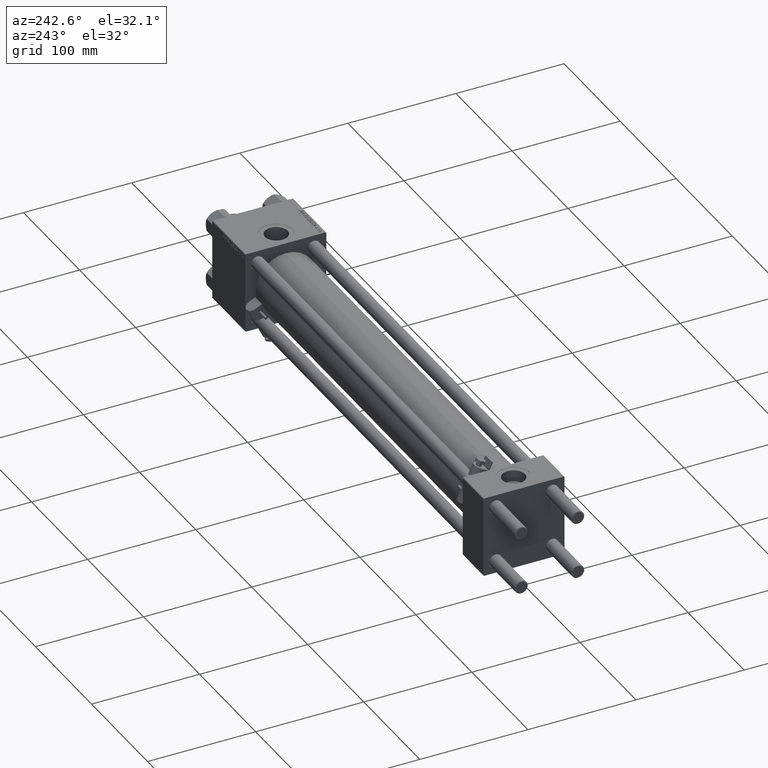
[diagram: clean part render]
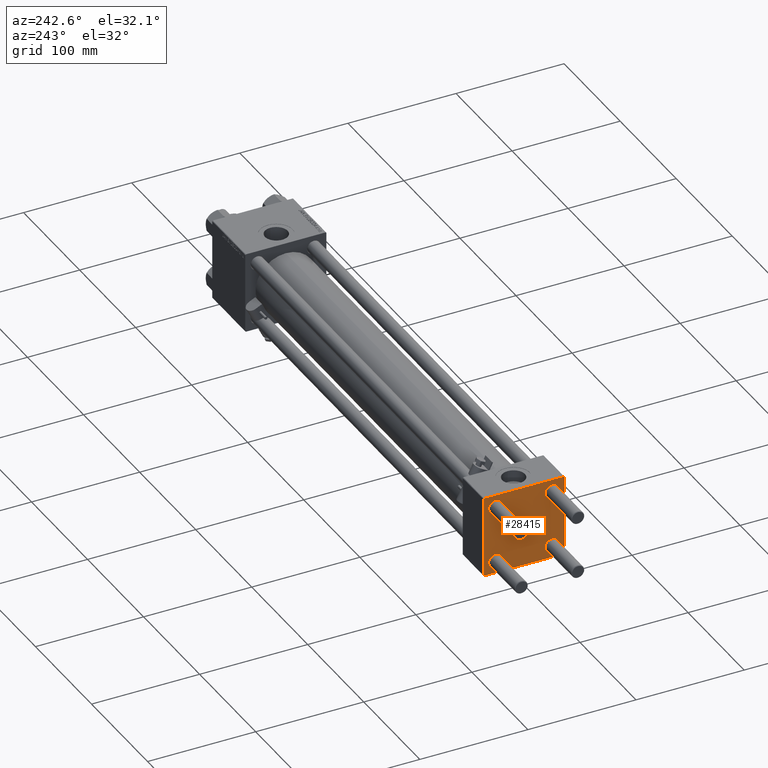
[diagram: same view with one face highlighted and labeled with its STEP entity id]
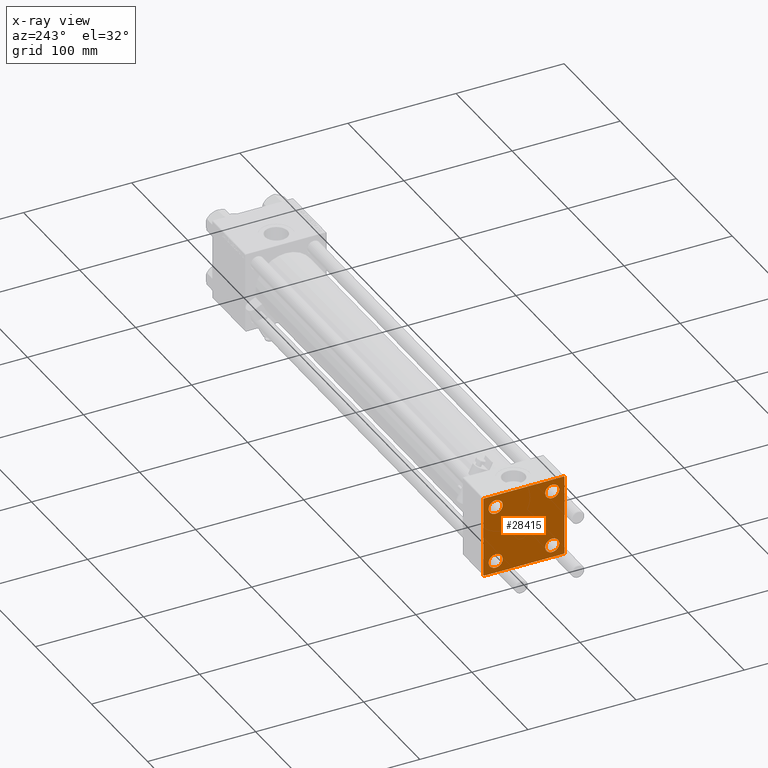
[diagram: x-ray of the same camera — body ghosted, the highlighted face saturated]
A machine part, auxiliary view. The second image highlights one B-rep face of the part: STEP entity #28415.
The next image is the same camera in x-ray: the body ghosted, the highlighted face saturated — about 0% of this face is hidden behind the body in this view.
In plain terms, the highlighted planar face has unit normal (-1, 0, 0).
Its self-contained STEP definition (entity closure, byte-faithful):
#137 = LINE ( 'NONE', #3837, #38726 ) ;
#274 = ORIENTED_EDGE ( 'NONE', *, *, #49593, .T. ) ;
#392 = DIRECTION ( 'NONE',  ( 0.000000000000000000, 9.251858538542971581E-17, -1.000000000000000000 ) ) ;
#677 = ORIENTED_EDGE ( 'NONE', *, *, #46700, .T. ) ;
#836 = ORIENTED_EDGE ( 'NONE', *, *, #30926, .T. ) ;
#933 = VERTEX_POINT ( 'NONE', #28862 ) ;
#1445 = VERTEX_POINT ( 'NONE', #44728 ) ;
#3435 = LINE ( 'NONE', #31499, #7609 ) ;
#3837 = CARTESIAN_POINT ( 'NONE',  ( 0.000000000000000000, -37.50000000000000711, 37.49999999999999289 ) ) ;
#4575 = VERTEX_POINT ( 'NONE', #49003 ) ;
#4714 = ORIENTED_EDGE ( 'NONE', *, *, #25973, .F. ) ;
#5181 = DIRECTION ( 'NONE',  ( 1.000000000000000000, -0.000000000000000000, 0.000000000000000000 ) ) ;
#5385 = VECTOR ( 'NONE', #34020, 1000.000000000000114 ) ;
#5472 = DIRECTION ( 'NONE',  ( 0.000000000000000000, 0.000000000000000000, 1.000000000000000000 ) ) ;
#5549 = CARTESIAN_POINT ( 'NONE',  ( 0.000000000000000000, 26.14999999999999858, 26.15000000000000213 ) ) ;
#6044 = AXIS2_PLACEMENT_3D ( 'NONE', #13925, #5181, #45160 ) ;
#6916 = VERTEX_POINT ( 'NONE', #23203 ) ;
#7567 = VERTEX_POINT ( 'NONE', #11062 ) ;
#7609 = VECTOR ( 'NONE', #47666, 1000.000000000000000 ) ;
#7723 = VERTEX_POINT ( 'NONE', #39364 ) ;
#8909 = EDGE_CURVE ( 'NONE', #7723, #48031, #23593, .T. ) ;
#9100 = AXIS2_PLACEMENT_3D ( 'NONE', #51370, #24309, #40211 ) ;
#9737 = EDGE_LOOP ( 'NONE', ( #37878, #17606 ) ) ;
#9763 = VERTEX_POINT ( 'NONE', #39744 ) ;
#10894 = VERTEX_POINT ( 'NONE', #21459 ) ;
#11062 = CARTESIAN_POINT ( 'NONE',  ( 0.000000000000000000, 37.49999999999999289, 37.00000000000000000 ) ) ;
#11670 = CARTESIAN_POINT ( 'NONE',  ( 0.000000000000000000, -26.14999999999999147, 32.65000000000003411 ) ) ;
#11687 = VECTOR ( 'NONE', #33465, 1000.000000000000000 ) ;
#11698 = CARTESIAN_POINT ( 'NONE',  ( -0.000000000000000000, -37.25000000000000000, 37.25000000000000000 ) ) ;
#12338 = ORIENTED_EDGE ( 'NONE', *, *, #37587, .T. ) ;
#12403 = VERTEX_POINT ( 'NONE', #36164 ) ;
#12811 = CARTESIAN_POINT ( 'NONE',  ( 0.000000000000000000, 26.14999999999999858, -26.15000000000000213 ) ) ;
#13817 = EDGE_CURVE ( 'NONE', #12403, #21548, #3435, .T. ) ;
#13865 = AXIS2_PLACEMENT_3D ( 'NONE', #47605, #43614, #23218 ) ;
#13925 = CARTESIAN_POINT ( 'NONE',  ( 0.000000000000000000, -26.14999999999999147, 26.15000000000000924 ) ) ;
#14039 = DIRECTION ( 'NONE',  ( 1.000000000000000000, -0.000000000000000000, 0.000000000000000000 ) ) ;
#14151 = CIRCLE ( 'NONE', #50516, 6.500000000000015987 ) ;
#14353 = LINE ( 'NONE', #22020, #33031 ) ;
#14956 = CARTESIAN_POINT ( 'NONE',  ( 0.000000000000000000, -26.14999999999999147, -32.65000000000002700 ) ) ;
#14969 = ORIENTED_EDGE ( 'NONE', *, *, #33819, .F. ) ;
#15232 = VECTOR ( 'NONE', #36744, 1000.000000000000000 ) ;
#15276 = EDGE_CURVE ( 'NONE', #42941, #7567, #14353, .T. ) ;
#15391 = VERTEX_POINT ( 'NONE', #11670 ) ;
#16077 = CARTESIAN_POINT ( 'NONE',  ( 0.000000000000000000, -37.00000000000002132, -37.50000000000000711 ) ) ;
#16781 = VECTOR ( 'NONE', #42779, 1000.000000000000000 ) ;
#17606 = ORIENTED_EDGE ( 'NONE', *, *, #45076, .T. ) ;
#18117 = LINE ( 'NONE', #26042, #11687 ) ;
#18414 = CIRCLE ( 'NONE', #42067, 6.500000000000015987 ) ;
#18547 = VECTOR ( 'NONE', #36039, 1000.000000000000114 ) ;
#19311 = FACE_BOUND ( 'NONE', #29906, .T. ) ;
#19994 = VERTEX_POINT ( 'NONE', #14956 ) ;
#20417 = CARTESIAN_POINT ( 'NONE',  ( 0.000000000000000000, -26.14999999999999147, -26.15000000000000924 ) ) ;
#20896 = ORIENTED_EDGE ( 'NONE', *, *, #26024, .T. ) ;
#21314 = ORIENTED_EDGE ( 'NONE', *, *, #15276, .T. ) ;
#21414 = CIRCLE ( 'NONE', #29030, 6.500000000000023093 ) ;
#21459 = CARTESIAN_POINT ( 'NONE',  ( 0.000000000000000000, 26.14999999999999858, 32.65000000000002700 ) ) ;
#21548 = VERTEX_POINT ( 'NONE', #16077 ) ;
#22020 = CARTESIAN_POINT ( 'NONE',  ( 0.000000000000000000, 37.24999999999999289, 37.24999999999999289 ) ) ;
#22906 = CARTESIAN_POINT ( 'NONE',  ( 0.000000000000000000, 37.49999999999999289, 37.50000000000000000 ) ) ;
#23203 = CARTESIAN_POINT ( 'NONE',  ( 0.000000000000000000, 37.49999999999999289, -36.99999999999998579 ) ) ;
#23218 = DIRECTION ( 'NONE',  ( 0.000000000000000000, 0.000000000000000000, 1.000000000000000000 ) ) ;
#23332 = DIRECTION ( 'NONE',  ( 0.000000000000000000, 0.000000000000000000, 1.000000000000000000 ) ) ;
#23593 = LINE ( 'NONE', #11698, #18547 ) ;
#23605 = DIRECTION ( 'NONE',  ( 1.000000000000000000, -0.000000000000000000, 0.000000000000000000 ) ) ;
#23675 = AXIS2_PLACEMENT_3D ( 'NONE', #5549, #14039, #41828 ) ;
#24271 = AXIS2_PLACEMENT_3D ( 'NONE', #36984, #29035, #5472 ) ;
#24309 = DIRECTION ( 'NONE',  ( -1.000000000000000000, 0.000000000000000000, -0.000000000000000000 ) ) ;
#24534 = EDGE_CURVE ( 'NONE', #1445, #933, #14151, .T. ) ;
#24691 = DIRECTION ( 'NONE',  ( 0.000000000000000000, 0.000000000000000000, 1.000000000000000000 ) ) ;
#25973 = EDGE_CURVE ( 'NONE', #7723, #38713, #137, .T. ) ;
#26024 = EDGE_CURVE ( 'NONE', #21548, #38713, #18117, .T. ) ;
#26042 = CARTESIAN_POINT ( 'NONE',  ( 0.000000000000000000, -37.24999999999975842, -37.25000000000027001 ) ) ;
#26214 = CARTESIAN_POINT ( 'NONE',  ( 0.000000000000000000, -37.00000000000000711, 37.49999999999999289 ) ) ;
#26951 = EDGE_CURVE ( 'NONE', #9763, #15391, #30196, .T. ) ;
#27104 = LINE ( 'NONE', #47246, #5385 ) ;
#28036 = EDGE_CURVE ( 'NONE', #19994, #4575, #18414, .T. ) ;
#28415 = ADVANCED_FACE ( 'NONE', ( #31492, #35456, #19311, #32017, #43936 ), #35187, .T. ) ;
#28862 = CARTESIAN_POINT ( 'NONE',  ( 0.000000000000000000, 26.14999999999999858, -19.64999999999998792 ) ) ;
#29030 = AXIS2_PLACEMENT_3D ( 'NONE', #40226, #40481, #43950 ) ;
#29035 = DIRECTION ( 'NONE',  ( 1.000000000000000000, -0.000000000000000000, 0.000000000000000000 ) ) ;
#29844 = ORIENTED_EDGE ( 'NONE', *, *, #24534, .T. ) ;
#29906 = EDGE_LOOP ( 'NONE', ( #274, #29844 ) ) ;
#30196 = CIRCLE ( 'NONE', #24271, 6.500000000000023093 ) ;
#30711 = CARTESIAN_POINT ( 'NONE',  ( 0.000000000000000000, 36.99999999999999289, 37.50000000000000000 ) ) ;
#30926 = EDGE_CURVE ( 'NONE', #7567, #6916, #38015, .T. ) ;
#31276 = CIRCLE ( 'NONE', #23675, 6.500000000000023093 ) ;
#31492 = FACE_BOUND ( 'NONE', #49204, .T. ) ;
#31499 = CARTESIAN_POINT ( 'NONE',  ( 0.000000000000000000, 37.49999999999999289, -37.50000000000000000 ) ) ;
#31506 = CARTESIAN_POINT ( 'NONE',  ( 0.000000000000000000, -37.50000000000000000, -37.00000000000003553 ) ) ;
#31820 = CARTESIAN_POINT ( 'NONE',  ( 0.000000000000000000, -26.14999999999999147, -26.15000000000000924 ) ) ;
#32017 = FACE_BOUND ( 'NONE', #9737, .T. ) ;
#33031 = VECTOR ( 'NONE', #50893, 1000.000000000000114 ) ;
#33465 = DIRECTION ( 'NONE',  ( 0.000000000000000000, -0.7071067811865524577, 0.7071067811865426878 ) ) ;
#33636 = EDGE_CURVE ( 'NONE', #10894, #37168, #31276, .T. ) ;
#33819 = EDGE_CURVE ( 'NONE', #42941, #48031, #44426, .T. ) ;
#34020 = DIRECTION ( 'NONE',  ( -0.000000000000000000, -0.7071067811865474617, -0.7071067811865474617 ) ) ;
#34764 = CIRCLE ( 'NONE', #6044, 6.500000000000023093 ) ;
#35187 = PLANE ( 'NONE',  #9100 ) ;
#35456 = FACE_BOUND ( 'NONE', #42842, .T. ) ;
#35519 = DIRECTION ( 'NONE',  ( 0.000000000000000000, 0.000000000000000000, 1.000000000000000000 ) ) ;
#35829 = ORIENTED_EDGE ( 'NONE', *, *, #8909, .T. ) ;
#36039 = DIRECTION ( 'NONE',  ( -0.000000000000000000, 0.7071067811865474617, 0.7071067811865474617 ) ) ;
#36164 = CARTESIAN_POINT ( 'NONE',  ( 0.000000000000000000, 36.99999999999997868, -37.50000000000000000 ) ) ;
#36744 = DIRECTION ( 'NONE',  ( 0.000000000000000000, -1.000000000000000000, -9.251858538542971581E-17 ) ) ;
#36984 = CARTESIAN_POINT ( 'NONE',  ( 0.000000000000000000, -26.14999999999999147, 26.15000000000000924 ) ) ;
#37168 = VERTEX_POINT ( 'NONE', #41717 ) ;
#37215 = EDGE_CURVE ( 'NONE', #15391, #9763, #34764, .T. ) ;
#37587 = EDGE_CURVE ( 'NONE', #4575, #19994, #44096, .T. ) ;
#37878 = ORIENTED_EDGE ( 'NONE', *, *, #33636, .T. ) ;
#38015 = LINE ( 'NONE', #22906, #16781 ) ;
#38713 = VERTEX_POINT ( 'NONE', #31506 ) ;
#38726 = VECTOR ( 'NONE', #392, 1000.000000000000000 ) ;
#39364 = CARTESIAN_POINT ( 'NONE',  ( 0.000000000000000000, -37.50000000000000711, 36.99999999999999289 ) ) ;
#39744 = CARTESIAN_POINT ( 'NONE',  ( 0.000000000000000000, -26.14999999999999147, 19.64999999999999147 ) ) ;
#40211 = DIRECTION ( 'NONE',  ( -0.000000000000000000, 0.000000000000000000, 1.000000000000000000 ) ) ;
#40226 = CARTESIAN_POINT ( 'NONE',  ( 0.000000000000000000, 26.14999999999999858, 26.15000000000000213 ) ) ;
#40448 = CARTESIAN_POINT ( 'NONE',  ( 0.000000000000000000, 37.49999999999999289, 37.50000000000000000 ) ) ;
#40481 = DIRECTION ( 'NONE',  ( 1.000000000000000000, -0.000000000000000000, 0.000000000000000000 ) ) ;
#40847 = DIRECTION ( 'NONE',  ( 1.000000000000000000, -0.000000000000000000, 0.000000000000000000 ) ) ;
#41717 = CARTESIAN_POINT ( 'NONE',  ( 0.000000000000000000, 26.14999999999999858, 19.64999999999998437 ) ) ;
#41783 = CIRCLE ( 'NONE', #13865, 6.500000000000015987 ) ;
#41828 = DIRECTION ( 'NONE',  ( 0.000000000000000000, 0.000000000000000000, 1.000000000000000000 ) ) ;
#42067 = AXIS2_PLACEMENT_3D ( 'NONE', #20417, #51696, #35519 ) ;
#42240 = ORIENTED_EDGE ( 'NONE', *, *, #28036, .T. ) ;
#42291 = ORIENTED_EDGE ( 'NONE', *, *, #13817, .T. ) ;
#42779 = DIRECTION ( 'NONE',  ( 0.000000000000000000, 0.000000000000000000, -1.000000000000000000 ) ) ;
#42842 = EDGE_LOOP ( 'NONE', ( #12338, #42240 ) ) ;
#42941 = VERTEX_POINT ( 'NONE', #30711 ) ;
#43230 = AXIS2_PLACEMENT_3D ( 'NONE', #31820, #23605, #23332 ) ;
#43614 = DIRECTION ( 'NONE',  ( 1.000000000000000000, -0.000000000000000000, 0.000000000000000000 ) ) ;
#43936 = FACE_OUTER_BOUND ( 'NONE', #46720, .T. ) ;
#43950 = DIRECTION ( 'NONE',  ( 0.000000000000000000, 0.000000000000000000, 1.000000000000000000 ) ) ;
#44096 = CIRCLE ( 'NONE', #43230, 6.500000000000015987 ) ;
#44426 = LINE ( 'NONE', #40448, #15232 ) ;
#44629 = ORIENTED_EDGE ( 'NONE', *, *, #37215, .T. ) ;
#44728 = CARTESIAN_POINT ( 'NONE',  ( 0.000000000000000000, 26.14999999999999858, -32.65000000000001990 ) ) ;
#45076 = EDGE_CURVE ( 'NONE', #37168, #10894, #21414, .T. ) ;
#45160 = DIRECTION ( 'NONE',  ( 0.000000000000000000, 0.000000000000000000, 1.000000000000000000 ) ) ;
#46700 = EDGE_CURVE ( 'NONE', #6916, #12403, #27104, .T. ) ;
#46720 = EDGE_LOOP ( 'NONE', ( #836, #677, #42291, #20896, #4714, #35829, #14969, #21314 ) ) ;
#47246 = CARTESIAN_POINT ( 'NONE',  ( 0.000000000000000000, 37.24999999999998579, -37.24999999999998579 ) ) ;
#47605 = CARTESIAN_POINT ( 'NONE',  ( 0.000000000000000000, 26.14999999999999858, -26.15000000000000213 ) ) ;
#47666 = DIRECTION ( 'NONE',  ( 0.000000000000000000, -1.000000000000000000, -9.251858538542972814E-17 ) ) ;
#48031 = VERTEX_POINT ( 'NONE', #26214 ) ;
#48845 = ORIENTED_EDGE ( 'NONE', *, *, #26951, .T. ) ;
#49003 = CARTESIAN_POINT ( 'NONE',  ( 0.000000000000000000, -26.14999999999999147, -19.64999999999999503 ) ) ;
#49204 = EDGE_LOOP ( 'NONE', ( #44629, #48845 ) ) ;
#49593 = EDGE_CURVE ( 'NONE', #933, #1445, #41783, .T. ) ;
#50516 = AXIS2_PLACEMENT_3D ( 'NONE', #12811, #40847, #24691 ) ;
#50893 = DIRECTION ( 'NONE',  ( 0.000000000000000000, 0.7071067811865474617, -0.7071067811865474617 ) ) ;
#51370 = CARTESIAN_POINT ( 'NONE',  ( 0.000000000000000000, 0.000000000000000000, 0.000000000000000000 ) ) ;
#51696 = DIRECTION ( 'NONE',  ( 1.000000000000000000, -0.000000000000000000, 0.000000000000000000 ) ) ;